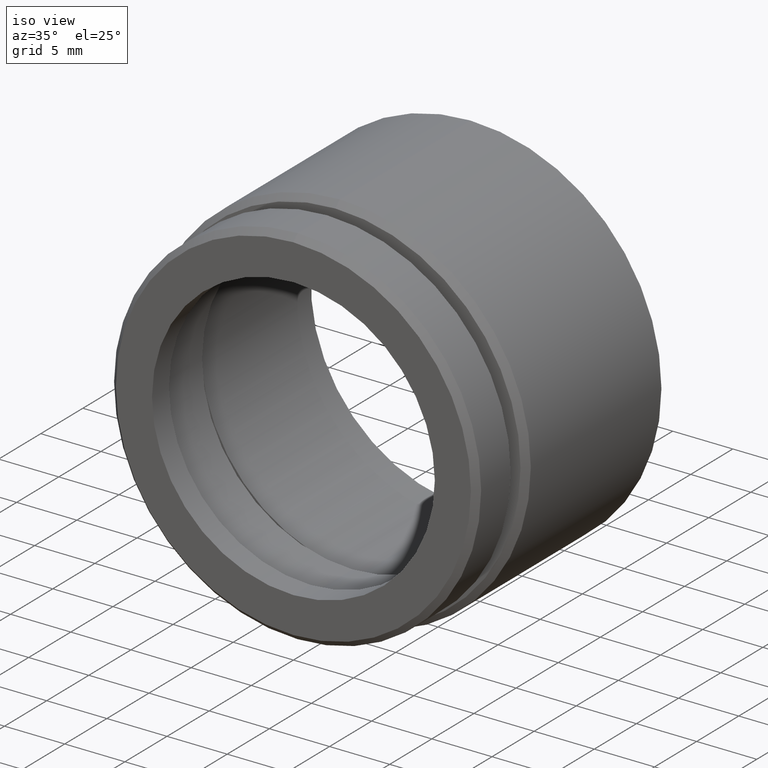
[diagram: clean part render]
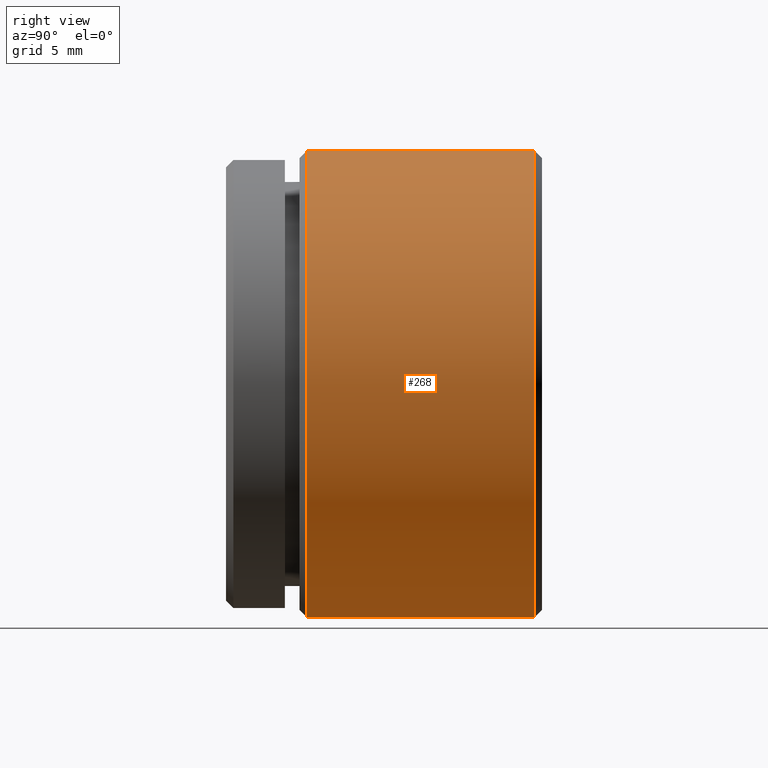
[diagram: tour spotlight — one face highlighted and labeled with its STEP entity id]
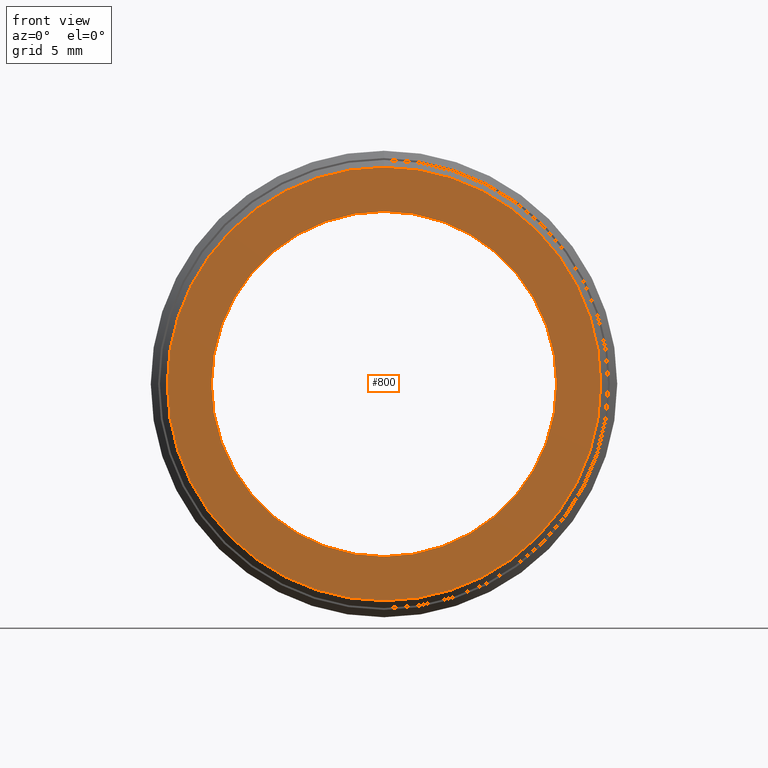
[diagram: tour spotlight — one face highlighted and labeled with its STEP entity id]
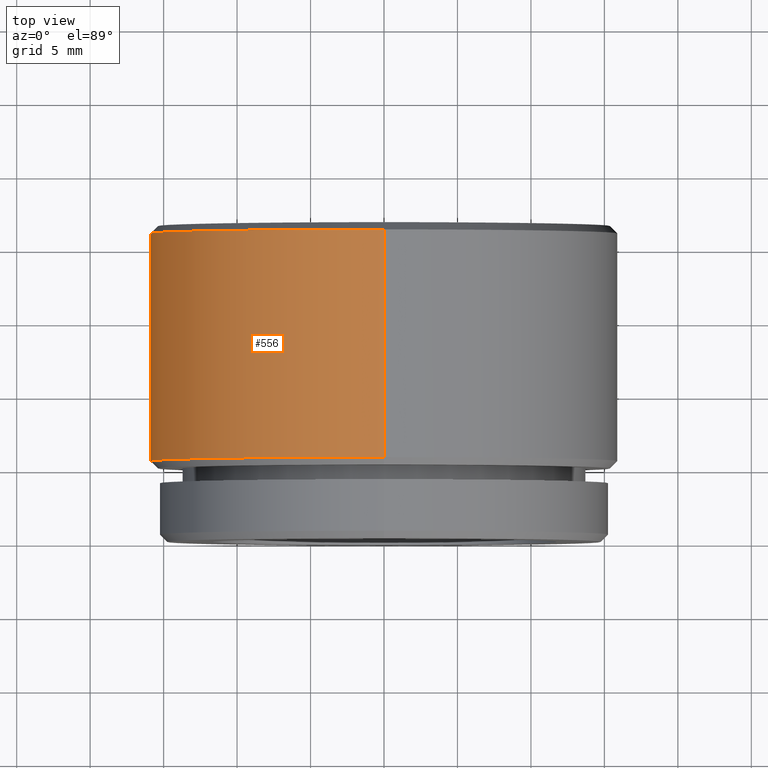
[diagram: tour spotlight — one face highlighted and labeled with its STEP entity id]
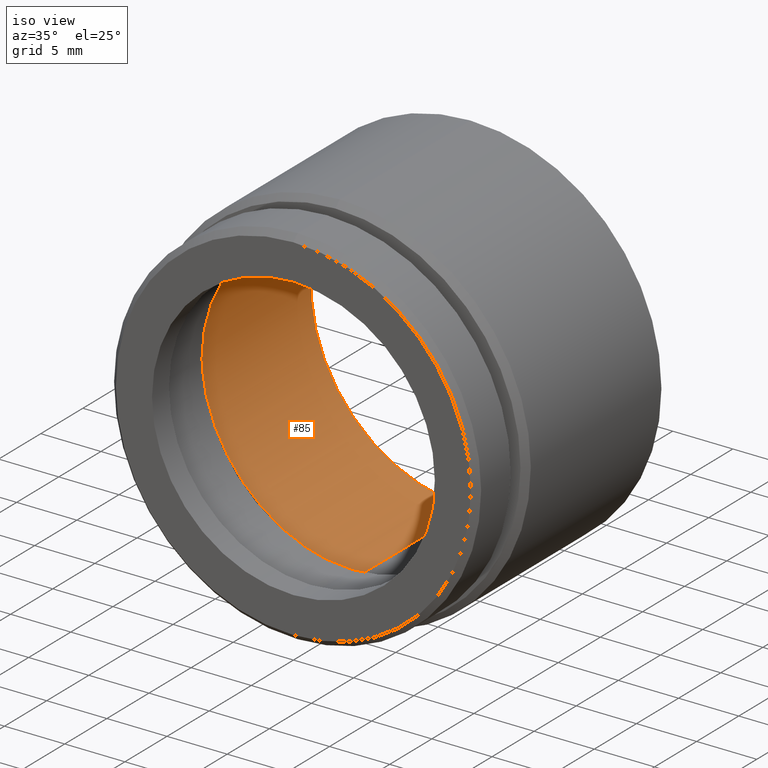
[diagram: tour spotlight — one face highlighted and labeled with its STEP entity id]
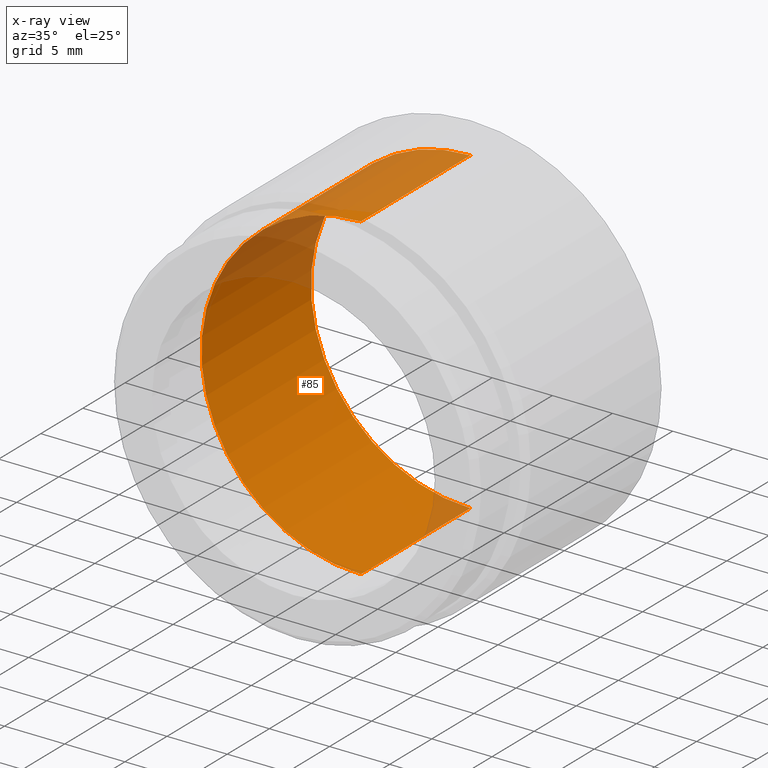
[diagram: x-ray of the same camera — body ghosted, this tour face saturated]
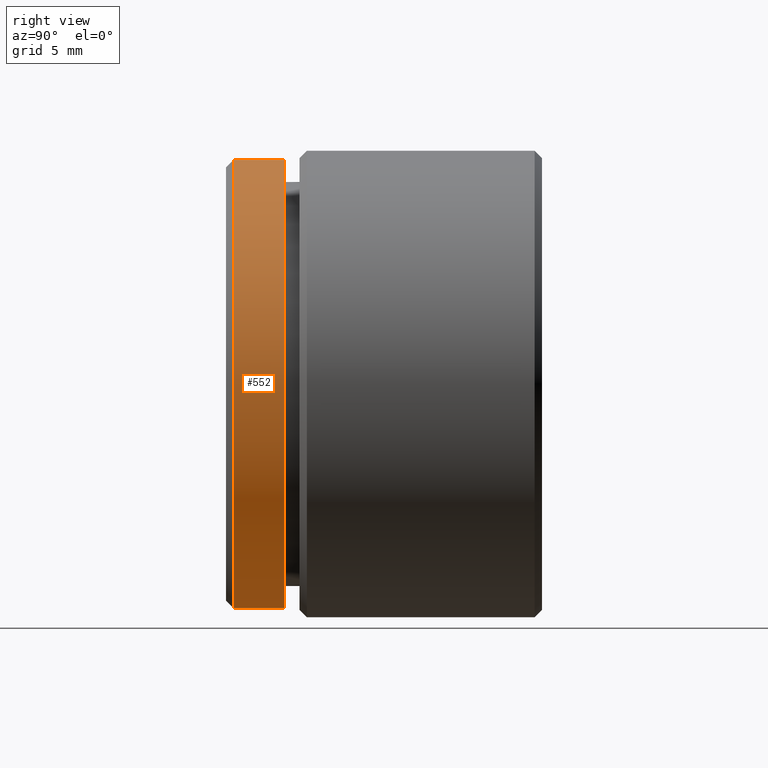
[diagram: tour spotlight — one face highlighted and labeled with its STEP entity id]
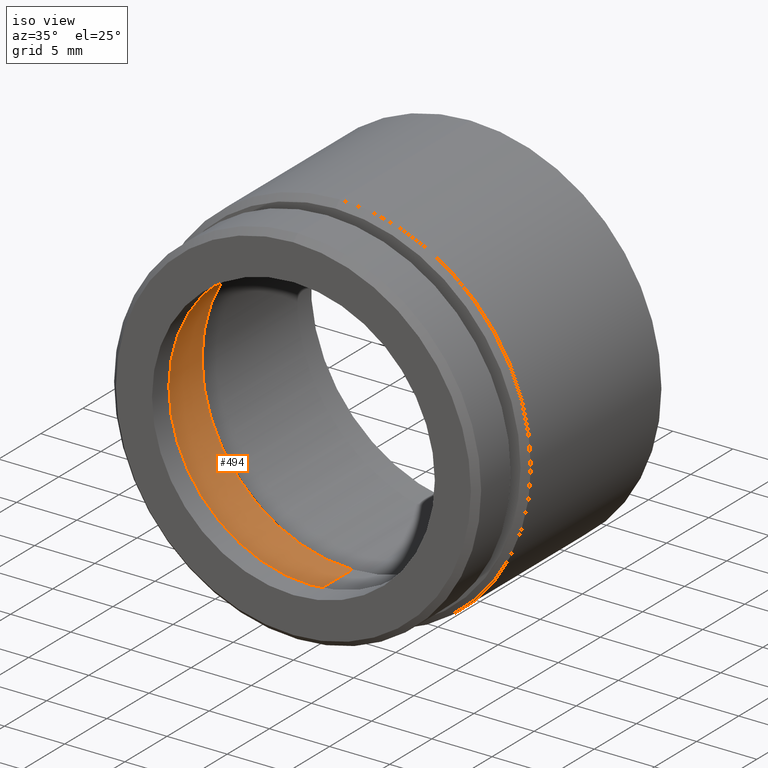
[diagram: tour spotlight — one face highlighted and labeled with its STEP entity id]
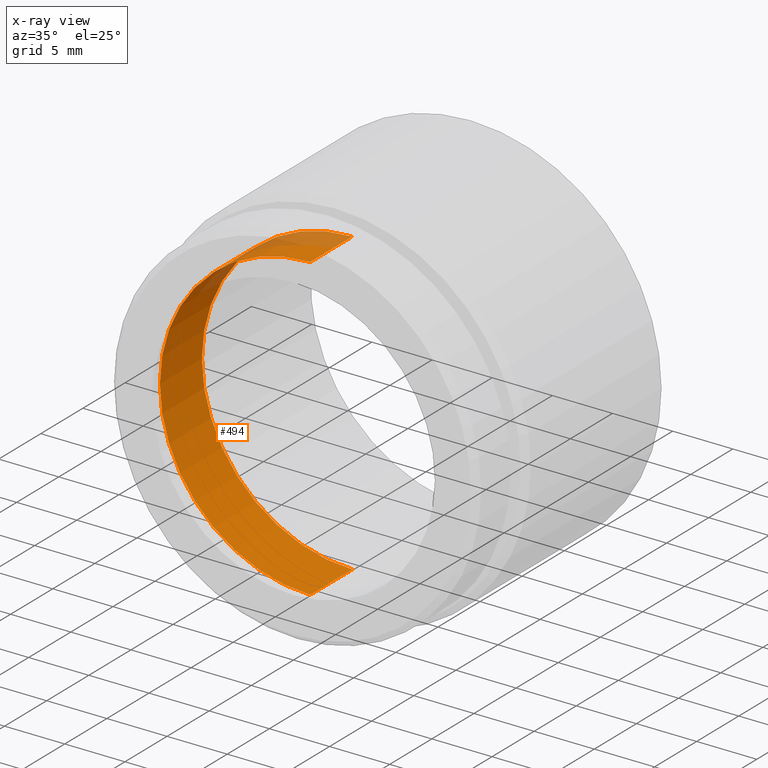
[diagram: x-ray of the same camera — body ghosted, this tour face saturated]
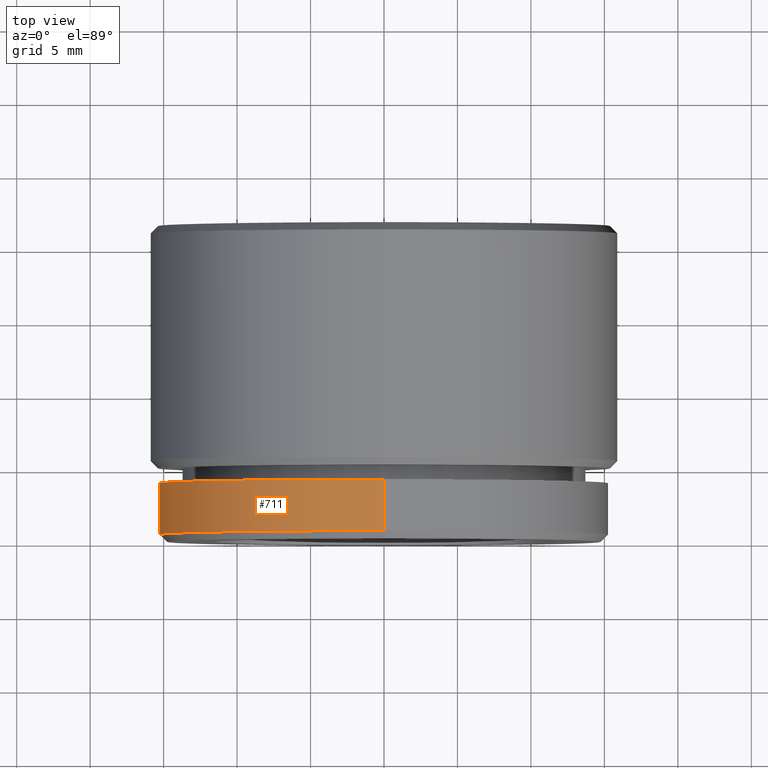
[diagram: tour spotlight — one face highlighted and labeled with its STEP entity id]
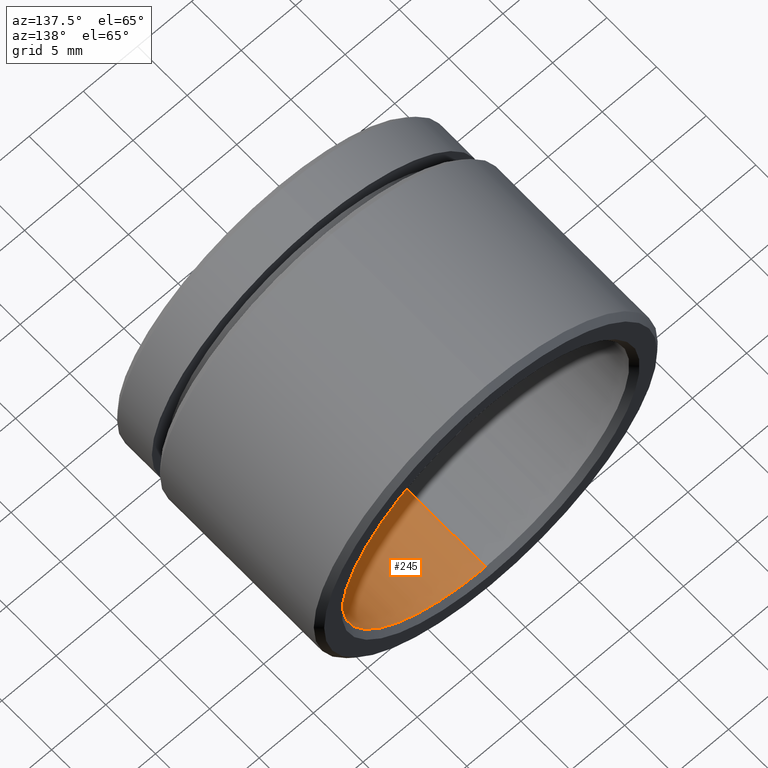
[diagram: tour spotlight — one face highlighted and labeled with its STEP entity id]
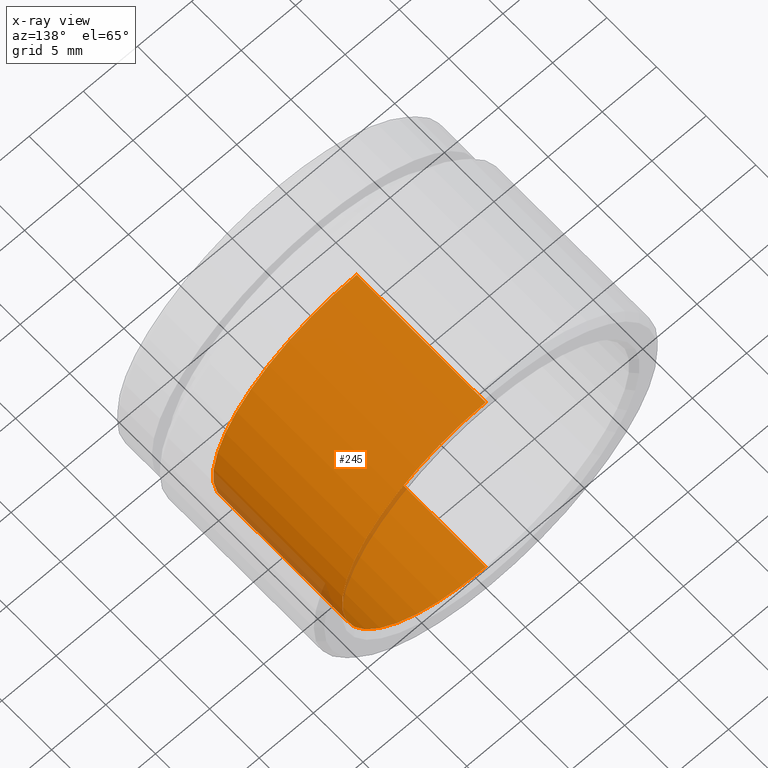
[diagram: x-ray of the same camera — body ghosted, this tour face saturated]
A machine part: a face-by-face anatomy tour. The part has 29 B-rep faces; the first image is the clean iso view, then the 8 largest visible faces are spotlighted one at a time (largest first), each with its STEP entity span.

Face 1 — right view, entity #268. In plain terms, the highlighted cylindrical surface (partial cylindrical patch) has radius 15.875 mm, axis along (-0, -1, -0).
Definition (entity closure, byte-faithful):
#32 = CARTESIAN_POINT ( 'NONE',  ( 0.0000000000000000000, 21.00000000000000000, 0.0000000000000000000 ) ) ;
#34 = CARTESIAN_POINT ( 'NONE',  ( 0.0000000000000000000, 5.500000000000010700, 0.0000000000000000000 ) ) ;
#44 = CYLINDRICAL_SURFACE ( 'NONE', #798, 15.87500000000000000 ) ;
#50 = DIRECTION ( 'NONE',  ( 0.0000000000000000000, 1.000000000000000000, 0.0000000000000000000 ) ) ;
#65 = FACE_OUTER_BOUND ( 'NONE', #105, .T. ) ;
#69 = EDGE_CURVE ( 'NONE', #356, #218, #597, .T. ) ;
#105 = EDGE_LOOP ( 'NONE', ( #115, #612, #541, #323 ) ) ;
#115 = ORIENTED_EDGE ( 'NONE', *, *, #562, .T. ) ;
#172 = AXIS2_PLACEMENT_3D ( 'NONE', #34, #50, #244 ) ;
#218 = VERTEX_POINT ( 'NONE', #421 ) ;
#225 = CARTESIAN_POINT ( 'NONE',  ( 0.0000000000000000000, 21.00000000000000000, -15.87500000000000000 ) ) ;
#243 = VERTEX_POINT ( 'NONE', #804 ) ;
#244 = DIRECTION ( 'NONE',  ( 0.0000000000000000000, 0.0000000000000000000, -1.000000000000000000 ) ) ;
#254 = VECTOR ( 'NONE', #402, 1000.000000000000000 ) ;
#256 = DIRECTION ( 'NONE',  ( 0.0000000000000000000, 0.0000000000000000000, 1.000000000000000000 ) ) ;
#259 = DIRECTION ( 'NONE',  ( -0.0000000000000000000, -1.000000000000000000, -0.0000000000000000000 ) ) ;
#268 = ADVANCED_FACE ( 'NONE', ( #65 ), #44, .T. ) ;
#282 = AXIS2_PLACEMENT_3D ( 'NONE', #32, #259, #256 ) ;
#323 = ORIENTED_EDGE ( 'NONE', *, *, #69, .F. ) ;
#325 = DIRECTION ( 'NONE',  ( -0.0000000000000000000, -1.000000000000000000, -0.0000000000000000000 ) ) ;
#333 = LINE ( 'NONE', #483, #480 ) ;
#356 = VERTEX_POINT ( 'NONE', #225 ) ;
#359 = CARTESIAN_POINT ( 'NONE',  ( 0.0000000000000000000, 0.0000000000000000000, 0.0000000000000000000 ) ) ;
#360 = DIRECTION ( 'NONE',  ( 0.0000000000000000000, 0.0000000000000000000, -1.000000000000000000 ) ) ;
#402 = DIRECTION ( 'NONE',  ( -0.0000000000000000000, -1.000000000000000000, -0.0000000000000000000 ) ) ;
#421 = CARTESIAN_POINT ( 'NONE',  ( 0.0000000000000000000, 5.500000000000010700, -15.87500000000000000 ) ) ;
#480 = VECTOR ( 'NONE', #735, 1000.000000000000000 ) ;
#483 = CARTESIAN_POINT ( 'NONE',  ( 1.944126793646423200E-015, 0.0000000000000000000, 15.87500000000000000 ) ) ;
#525 = CIRCLE ( 'NONE', #282, 15.87500000000000000 ) ;
#541 = ORIENTED_EDGE ( 'NONE', *, *, #652, .T. ) ;
#562 = EDGE_CURVE ( 'NONE', #356, #243, #525, .T. ) ;
#597 = LINE ( 'NONE', #731, #254 ) ;
#598 = CIRCLE ( 'NONE', #172, 15.87500000000000000 ) ;
#612 = ORIENTED_EDGE ( 'NONE', *, *, #724, .T. ) ;
#635 = VERTEX_POINT ( 'NONE', #866 ) ;
#652 = EDGE_CURVE ( 'NONE', #635, #218, #598, .T. ) ;
#724 = EDGE_CURVE ( 'NONE', #243, #635, #333, .T. ) ;
#731 = CARTESIAN_POINT ( 'NONE',  ( 0.0000000000000000000, 0.0000000000000000000, -15.87500000000000000 ) ) ;
#735 = DIRECTION ( 'NONE',  ( -0.0000000000000000000, -1.000000000000000000, -0.0000000000000000000 ) ) ;
#798 = AXIS2_PLACEMENT_3D ( 'NONE', #359, #325, #360 ) ;
#804 = CARTESIAN_POINT ( 'NONE',  ( 1.944126793646423200E-015, 21.00000000000000000, 15.87500000000000000 ) ) ;
#866 = CARTESIAN_POINT ( 'NONE',  ( 1.944126793646423200E-015, 5.500000000000010700, 15.87500000000000000 ) ) ;

Face 2 — front view, entity #800. In plain terms, the highlighted planar face has unit normal (0, -1, -0).
Definition (entity closure, byte-faithful):
#2 = CIRCLE ( 'NONE', #351, 14.74999999999999300 ) ;
#59 = DIRECTION ( 'NONE',  ( -0.0000000000000000000, -1.000000000000000000, -0.0000000000000000000 ) ) ;
#63 = CARTESIAN_POINT ( 'NONE',  ( 1.438959988998140200E-015, 0.0000000000000000000, 11.75000000000000000 ) ) ;
#78 = CIRCLE ( 'NONE', #102, 11.75000000000000000 ) ;
#102 = AXIS2_PLACEMENT_3D ( 'NONE', #370, #379, #506 ) ;
#128 = AXIS2_PLACEMENT_3D ( 'NONE', #543, #59, #584 ) ;
#134 = VERTEX_POINT ( 'NONE', #63 ) ;
#154 = VERTEX_POINT ( 'NONE', #271 ) ;
#155 = AXIS2_PLACEMENT_3D ( 'NONE', #183, #181, #184 ) ;
#162 = DIRECTION ( 'NONE',  ( 0.0000000000000000000, 0.0000000000000000000, -1.000000000000000000 ) ) ;
#166 = ORIENTED_EDGE ( 'NONE', *, *, #554, .T. ) ;
#181 = DIRECTION ( 'NONE',  ( -0.0000000000000000000, -1.000000000000000000, -0.0000000000000000000 ) ) ;
#183 = CARTESIAN_POINT ( 'NONE',  ( 0.0000000000000000000, 0.0000000000000000000, 0.0000000000000000000 ) ) ;
#184 = DIRECTION ( 'NONE',  ( 0.0000000000000000000, 0.0000000000000000000, -1.000000000000000000 ) ) ;
#221 = DIRECTION ( 'NONE',  ( 0.0000000000000000000, 0.0000000000000000000, -1.000000000000000000 ) ) ;
#242 = EDGE_LOOP ( 'NONE', ( #166, #358 ) ) ;
#263 = VERTEX_POINT ( 'NONE', #361 ) ;
#271 = CARTESIAN_POINT ( 'NONE',  ( 0.0000000000000000000, 0.0000000000000000000, -11.75000000000000000 ) ) ;
#274 = CIRCLE ( 'NONE', #128, 11.75000000000000000 ) ;
#291 = DIRECTION ( 'NONE',  ( -0.0000000000000000000, -1.000000000000000000, -0.0000000000000000000 ) ) ;
#351 = AXIS2_PLACEMENT_3D ( 'NONE', #856, #291, #221 ) ;
#358 = ORIENTED_EDGE ( 'NONE', *, *, #641, .T. ) ;
#361 = CARTESIAN_POINT ( 'NONE',  ( 0.0000000000000000000, 0.0000000000000000000, 14.74999999999999300 ) ) ;
#370 = CARTESIAN_POINT ( 'NONE',  ( 0.0000000000000000000, 0.0000000000000000000, 0.0000000000000000000 ) ) ;
#379 = DIRECTION ( 'NONE',  ( -0.0000000000000000000, -1.000000000000000000, -0.0000000000000000000 ) ) ;
#408 = ORIENTED_EDGE ( 'NONE', *, *, #682, .F. ) ;
#446 = FACE_OUTER_BOUND ( 'NONE', #242, .T. ) ;
#506 = DIRECTION ( 'NONE',  ( 0.0000000000000000000, 0.0000000000000000000, -1.000000000000000000 ) ) ;
#543 = CARTESIAN_POINT ( 'NONE',  ( 0.0000000000000000000, 0.0000000000000000000, 0.0000000000000000000 ) ) ;
#554 = EDGE_CURVE ( 'NONE', #263, #668, #2, .T. ) ;
#584 = DIRECTION ( 'NONE',  ( 0.0000000000000000000, 0.0000000000000000000, -1.000000000000000000 ) ) ;
#620 = CARTESIAN_POINT ( 'NONE',  ( 11.75000000000000000, 0.0000000000000000000, 0.0000000000000000000 ) ) ;
#622 = CIRCLE ( 'NONE', #155, 14.74999999999999300 ) ;
#641 = EDGE_CURVE ( 'NONE', #668, #263, #622, .T. ) ;
#664 = CARTESIAN_POINT ( 'NONE',  ( 1.836970198721029600E-015, 0.0000000000000000000, -14.74999999999999300 ) ) ;
#668 = VERTEX_POINT ( 'NONE', #664 ) ;
#676 = EDGE_CURVE ( 'NONE', #154, #134, #78, .T. ) ;
#682 = EDGE_CURVE ( 'NONE', #134, #154, #274, .T. ) ;
#716 = EDGE_LOOP ( 'NONE', ( #759, #408 ) ) ;
#759 = ORIENTED_EDGE ( 'NONE', *, *, #676, .F. ) ;
#760 = PLANE ( 'NONE',  #803 ) ;
#800 = ADVANCED_FACE ( 'NONE', ( #446, #806 ), #760, .T. ) ;
#803 = AXIS2_PLACEMENT_3D ( 'NONE', #620, #841, #162 ) ;
#806 = FACE_BOUND ( 'NONE', #716, .T. ) ;
#841 = DIRECTION ( 'NONE',  ( 0.0000000000000000000, -1.000000000000000000, -0.0000000000000000000 ) ) ;
#856 = CARTESIAN_POINT ( 'NONE',  ( 0.0000000000000000000, 0.0000000000000000000, 0.0000000000000000000 ) ) ;

Face 3 — top view, entity #556. In plain terms, the highlighted cylindrical surface (partial cylindrical patch) has radius 15.875 mm, axis along (-0, -1, -0).
Definition (entity closure, byte-faithful):
#22 = ORIENTED_EDGE ( 'NONE', *, *, #536, .T. ) ;
#38 = ORIENTED_EDGE ( 'NONE', *, *, #69, .T. ) ;
#69 = EDGE_CURVE ( 'NONE', #356, #218, #597, .T. ) ;
#138 = CARTESIAN_POINT ( 'NONE',  ( 0.0000000000000000000, 0.0000000000000000000, 0.0000000000000000000 ) ) ;
#153 = CYLINDRICAL_SURFACE ( 'NONE', #236, 15.87500000000000000 ) ;
#192 = EDGE_LOOP ( 'NONE', ( #719, #22, #38, #853 ) ) ;
#211 = DIRECTION ( 'NONE',  ( 0.0000000000000000000, 0.0000000000000000000, -1.000000000000000000 ) ) ;
#218 = VERTEX_POINT ( 'NONE', #421 ) ;
#225 = CARTESIAN_POINT ( 'NONE',  ( 0.0000000000000000000, 21.00000000000000000, -15.87500000000000000 ) ) ;
#236 = AXIS2_PLACEMENT_3D ( 'NONE', #138, #414, #211 ) ;
#243 = VERTEX_POINT ( 'NONE', #804 ) ;
#254 = VECTOR ( 'NONE', #402, 1000.000000000000000 ) ;
#333 = LINE ( 'NONE', #483, #480 ) ;
#356 = VERTEX_POINT ( 'NONE', #225 ) ;
#367 = FACE_OUTER_BOUND ( 'NONE', #192, .T. ) ;
#392 = AXIS2_PLACEMENT_3D ( 'NONE', #553, #701, #697 ) ;
#402 = DIRECTION ( 'NONE',  ( -0.0000000000000000000, -1.000000000000000000, -0.0000000000000000000 ) ) ;
#414 = DIRECTION ( 'NONE',  ( -0.0000000000000000000, -1.000000000000000000, -0.0000000000000000000 ) ) ;
#421 = CARTESIAN_POINT ( 'NONE',  ( 0.0000000000000000000, 5.500000000000010700, -15.87500000000000000 ) ) ;
#473 = AXIS2_PLACEMENT_3D ( 'NONE', #661, #663, #667 ) ;
#480 = VECTOR ( 'NONE', #735, 1000.000000000000000 ) ;
#483 = CARTESIAN_POINT ( 'NONE',  ( 1.944126793646423200E-015, 0.0000000000000000000, 15.87500000000000000 ) ) ;
#519 = EDGE_CURVE ( 'NONE', #218, #635, #619, .T. ) ;
#536 = EDGE_CURVE ( 'NONE', #243, #356, #769, .T. ) ;
#553 = CARTESIAN_POINT ( 'NONE',  ( 0.0000000000000000000, 21.00000000000000000, 0.0000000000000000000 ) ) ;
#556 = ADVANCED_FACE ( 'NONE', ( #367 ), #153, .T. ) ;
#597 = LINE ( 'NONE', #731, #254 ) ;
#619 = CIRCLE ( 'NONE', #473, 15.87500000000000000 ) ;
#635 = VERTEX_POINT ( 'NONE', #866 ) ;
#661 = CARTESIAN_POINT ( 'NONE',  ( 0.0000000000000000000, 5.500000000000010700, 0.0000000000000000000 ) ) ;
#663 = DIRECTION ( 'NONE',  ( 0.0000000000000000000, 1.000000000000000000, 0.0000000000000000000 ) ) ;
#667 = DIRECTION ( 'NONE',  ( 0.0000000000000000000, 0.0000000000000000000, -1.000000000000000000 ) ) ;
#697 = DIRECTION ( 'NONE',  ( 0.0000000000000000000, 0.0000000000000000000, 1.000000000000000000 ) ) ;
#701 = DIRECTION ( 'NONE',  ( -0.0000000000000000000, -1.000000000000000000, -0.0000000000000000000 ) ) ;
#719 = ORIENTED_EDGE ( 'NONE', *, *, #724, .F. ) ;
#724 = EDGE_CURVE ( 'NONE', #243, #635, #333, .T. ) ;
#731 = CARTESIAN_POINT ( 'NONE',  ( 0.0000000000000000000, 0.0000000000000000000, -15.87500000000000000 ) ) ;
#735 = DIRECTION ( 'NONE',  ( -0.0000000000000000000, -1.000000000000000000, -0.0000000000000000000 ) ) ;
#769 = CIRCLE ( 'NONE', #392, 15.87500000000000000 ) ;
#804 = CARTESIAN_POINT ( 'NONE',  ( 1.944126793646423200E-015, 21.00000000000000000, 15.87500000000000000 ) ) ;
#853 = ORIENTED_EDGE ( 'NONE', *, *, #519, .T. ) ;
#866 = CARTESIAN_POINT ( 'NONE',  ( 1.944126793646423200E-015, 5.500000000000010700, 15.87500000000000000 ) ) ;

Face 4 — iso view, entity #85. An x-ray twin of the same camera follows (body ghosted, this face saturated) — the face is partly hidden behind the body. In plain terms, the highlighted cylindrical surface (partial cylindrical patch) has radius 13.25 mm, axis along (-0, -1, -0).
Definition (entity closure, byte-faithful):
#25 = ORIENTED_EDGE ( 'NONE', *, *, #694, .T. ) ;
#67 = EDGE_LOOP ( 'NONE', ( #79, #448, #25, #603 ) ) ;
#79 = ORIENTED_EDGE ( 'NONE', *, *, #712, .T. ) ;
#84 = VERTEX_POINT ( 'NONE', #328 ) ;
#85 = ADVANCED_FACE ( 'NONE', ( #93 ), #703, .F. ) ;
#88 = VERTEX_POINT ( 'NONE', #269 ) ;
#93 = FACE_OUTER_BOUND ( 'NONE', #67, .T. ) ;
#98 = AXIS2_PLACEMENT_3D ( 'NONE', #472, #442, #710 ) ;
#133 = LINE ( 'NONE', #237, #851 ) ;
#159 = AXIS2_PLACEMENT_3D ( 'NONE', #234, #810, #671 ) ;
#179 = VERTEX_POINT ( 'NONE', #450 ) ;
#226 = CIRCLE ( 'NONE', #98, 13.25000000000000200 ) ;
#234 = CARTESIAN_POINT ( 'NONE',  ( 0.0000000000000000000, 0.0000000000000000000, 0.0000000000000000000 ) ) ;
#237 = CARTESIAN_POINT ( 'NONE',  ( 0.0000000000000000000, 0.0000000000000000000, -13.25000000000000200 ) ) ;
#269 = CARTESIAN_POINT ( 'NONE',  ( 1.622657008870243300E-015, 7.999999999999998200, 13.25000000000000200 ) ) ;
#328 = CARTESIAN_POINT ( 'NONE',  ( 0.0000000000000000000, 21.00000000000000400, -13.25000000000000200 ) ) ;
#442 = DIRECTION ( 'NONE',  ( -0.0000000000000000000, -1.000000000000000000, -0.0000000000000000000 ) ) ;
#448 = ORIENTED_EDGE ( 'NONE', *, *, #660, .T. ) ;
#450 = CARTESIAN_POINT ( 'NONE',  ( 1.622657008870243300E-015, 21.00000000000000400, 13.25000000000000200 ) ) ;
#472 = CARTESIAN_POINT ( 'NONE',  ( 0.0000000000000000000, 7.999999999999998200, 0.0000000000000000000 ) ) ;
#567 = DIRECTION ( 'NONE',  ( -0.0000000000000000000, 1.000000000000000000, -0.0000000000000000000 ) ) ;
#603 = ORIENTED_EDGE ( 'NONE', *, *, #605, .F. ) ;
#605 = EDGE_CURVE ( 'NONE', #84, #657, #133, .T. ) ;
#609 = CARTESIAN_POINT ( 'NONE',  ( 0.0000000000000000000, 21.00000000000000400, 0.0000000000000000000 ) ) ;
#618 = DIRECTION ( 'NONE',  ( -0.0000000000000000000, -1.000000000000000000, -0.0000000000000000000 ) ) ;
#657 = VERTEX_POINT ( 'NONE', #691 ) ;
#660 = EDGE_CURVE ( 'NONE', #179, #88, #795, .T. ) ;
#671 = DIRECTION ( 'NONE',  ( 0.0000000000000000000, 0.0000000000000000000, -1.000000000000000000 ) ) ;
#691 = CARTESIAN_POINT ( 'NONE',  ( 0.0000000000000000000, 7.999999999999998200, -13.25000000000000200 ) ) ;
#694 = EDGE_CURVE ( 'NONE', #88, #657, #226, .T. ) ;
#703 = CYLINDRICAL_SURFACE ( 'NONE', #159, 13.25000000000000200 ) ;
#710 = DIRECTION ( 'NONE',  ( 0.0000000000000000000, 0.0000000000000000000, -1.000000000000000000 ) ) ;
#712 = EDGE_CURVE ( 'NONE', #84, #179, #843, .T. ) ;
#752 = DIRECTION ( 'NONE',  ( -0.0000000000000000000, -1.000000000000000000, -0.0000000000000000000 ) ) ;
#771 = VECTOR ( 'NONE', #618, 1000.000000000000000 ) ;
#779 = AXIS2_PLACEMENT_3D ( 'NONE', #609, #567, #862 ) ;
#795 = LINE ( 'NONE', #846, #771 ) ;
#810 = DIRECTION ( 'NONE',  ( -0.0000000000000000000, -1.000000000000000000, -0.0000000000000000000 ) ) ;
#843 = CIRCLE ( 'NONE', #779, 13.25000000000000200 ) ;
#846 = CARTESIAN_POINT ( 'NONE',  ( 1.622657008870243300E-015, 0.0000000000000000000, 13.25000000000000200 ) ) ;
#851 = VECTOR ( 'NONE', #752, 1000.000000000000000 ) ;
#862 = DIRECTION ( 'NONE',  ( 0.0000000000000000000, 0.0000000000000000000, 1.000000000000000000 ) ) ;

Face 5 — right view, entity #552. In plain terms, the highlighted cylindrical surface (partial cylindrical patch) has radius 15.25 mm, axis along (-0, -1, -0).
Definition (entity closure, byte-faithful):
#5 = VERTEX_POINT ( 'NONE', #37 ) ;
#7 = EDGE_CURVE ( 'NONE', #400, #5, #335, .T. ) ;
#17 = DIRECTION ( 'NONE',  ( 0.0000000000000000000, 0.0000000000000000000, -1.000000000000000000 ) ) ;
#29 = DIRECTION ( 'NONE',  ( 0.0000000000000000000, 1.000000000000000000, 0.0000000000000000000 ) ) ;
#37 = CARTESIAN_POINT ( 'NONE',  ( 0.0000000000000000000, 0.5000000000000057700, -15.25000000000000000 ) ) ;
#41 = CARTESIAN_POINT ( 'NONE',  ( 0.0000000000000000000, 0.5000000000000057700, 0.0000000000000000000 ) ) ;
#58 = ORIENTED_EDGE ( 'NONE', *, *, #839, .T. ) ;
#95 = ORIENTED_EDGE ( 'NONE', *, *, #824, .F. ) ;
#114 = CARTESIAN_POINT ( 'NONE',  ( 1.867586368699713800E-015, 0.5000000000000057700, 15.25000000000000000 ) ) ;
#146 = VERTEX_POINT ( 'NONE', #260 ) ;
#247 = DIRECTION ( 'NONE',  ( -0.0000000000000000000, -1.000000000000000000, -0.0000000000000000000 ) ) ;
#258 = ORIENTED_EDGE ( 'NONE', *, *, #7, .T. ) ;
#260 = CARTESIAN_POINT ( 'NONE',  ( 1.867586368699713800E-015, 4.000000000000000900, 15.25000000000000000 ) ) ;
#278 = AXIS2_PLACEMENT_3D ( 'NONE', #722, #674, #302 ) ;
#301 = EDGE_CURVE ( 'NONE', #430, #146, #757, .T. ) ;
#302 = DIRECTION ( 'NONE',  ( 0.0000000000000000000, 0.0000000000000000000, -1.000000000000000000 ) ) ;
#335 = CIRCLE ( 'NONE', #482, 15.25000000000000000 ) ;
#344 = VECTOR ( 'NONE', #381, 1000.000000000000000 ) ;
#381 = DIRECTION ( 'NONE',  ( -0.0000000000000000000, -1.000000000000000000, -0.0000000000000000000 ) ) ;
#383 = DIRECTION ( 'NONE',  ( -0.0000000000000000000, -1.000000000000000000, -0.0000000000000000000 ) ) ;
#385 = CARTESIAN_POINT ( 'NONE',  ( 0.0000000000000000000, 4.000000000000000900, 0.0000000000000000000 ) ) ;
#400 = VERTEX_POINT ( 'NONE', #114 ) ;
#430 = VERTEX_POINT ( 'NONE', #755 ) ;
#433 = FACE_OUTER_BOUND ( 'NONE', #636, .T. ) ;
#437 = CARTESIAN_POINT ( 'NONE',  ( 1.867586368699713800E-015, 0.0000000000000000000, 15.25000000000000000 ) ) ;
#482 = AXIS2_PLACEMENT_3D ( 'NONE', #41, #29, #17 ) ;
#492 = CARTESIAN_POINT ( 'NONE',  ( 0.0000000000000000000, 0.0000000000000000000, -15.25000000000000000 ) ) ;
#552 = ADVANCED_FACE ( 'NONE', ( #433 ), #692, .T. ) ;
#557 = DIRECTION ( 'NONE',  ( 0.0000000000000000000, 0.0000000000000000000, -1.000000000000000000 ) ) ;
#587 = LINE ( 'NONE', #492, #689 ) ;
#636 = EDGE_LOOP ( 'NONE', ( #751, #58, #258, #95 ) ) ;
#674 = DIRECTION ( 'NONE',  ( -0.0000000000000000000, -1.000000000000000000, -0.0000000000000000000 ) ) ;
#689 = VECTOR ( 'NONE', #247, 1000.000000000000000 ) ;
#692 = CYLINDRICAL_SURFACE ( 'NONE', #278, 15.25000000000000000 ) ;
#722 = CARTESIAN_POINT ( 'NONE',  ( 0.0000000000000000000, 0.0000000000000000000, 0.0000000000000000000 ) ) ;
#751 = ORIENTED_EDGE ( 'NONE', *, *, #301, .T. ) ;
#755 = CARTESIAN_POINT ( 'NONE',  ( 0.0000000000000000000, 4.000000000000000900, -15.25000000000000000 ) ) ;
#757 = CIRCLE ( 'NONE', #813, 15.25000000000000000 ) ;
#813 = AXIS2_PLACEMENT_3D ( 'NONE', #385, #383, #557 ) ;
#824 = EDGE_CURVE ( 'NONE', #430, #5, #587, .T. ) ;
#839 = EDGE_CURVE ( 'NONE', #146, #400, #874, .T. ) ;
#874 = LINE ( 'NONE', #437, #344 ) ;

Face 6 — iso view, entity #494. An x-ray twin of the same camera follows (body ghosted, this face saturated) — the face is partly hidden behind the body. In plain terms, the highlighted cylindrical surface (partial cylindrical patch) has radius 12.5 mm, axis along (-0, -1, -0).
Definition (entity closure, byte-faithful):
#14 = LINE ( 'NONE', #630, #513 ) ;
#18 = CARTESIAN_POINT ( 'NONE',  ( 1.530808498934191500E-015, 0.0000000000000000000, 12.50000000000000000 ) ) ;
#86 = EDGE_LOOP ( 'NONE', ( #819, #300, #459, #104 ) ) ;
#90 = EDGE_CURVE ( 'NONE', #504, #672, #14, .T. ) ;
#101 = CARTESIAN_POINT ( 'NONE',  ( 0.0000000000000000000, 7.000000000000000900, -12.50000000000000200 ) ) ;
#104 = ORIENTED_EDGE ( 'NONE', *, *, #90, .F. ) ;
#121 = CARTESIAN_POINT ( 'NONE',  ( 1.530808498934191500E-015, 2.000000000000000400, 12.50000000000000000 ) ) ;
#160 = AXIS2_PLACEMENT_3D ( 'NONE', #296, #413, #465 ) ;
#272 = CYLINDRICAL_SURFACE ( 'NONE', #523, 12.50000000000000000 ) ;
#296 = CARTESIAN_POINT ( 'NONE',  ( 0.0000000000000000000, 7.000000000000000900, 0.0000000000000000000 ) ) ;
#300 = ORIENTED_EDGE ( 'NONE', *, *, #802, .T. ) ;
#312 = CARTESIAN_POINT ( 'NONE',  ( 0.0000000000000000000, 0.0000000000000000000, 0.0000000000000000000 ) ) ;
#330 = DIRECTION ( 'NONE',  ( -0.0000000000000000000, -1.000000000000000000, -0.0000000000000000000 ) ) ;
#395 = DIRECTION ( 'NONE',  ( -0.0000000000000000000, -1.000000000000000000, -0.0000000000000000000 ) ) ;
#413 = DIRECTION ( 'NONE',  ( -0.0000000000000000000, -1.000000000000000000, -0.0000000000000000000 ) ) ;
#432 = AXIS2_PLACEMENT_3D ( 'NONE', #742, #753, #756 ) ;
#459 = ORIENTED_EDGE ( 'NONE', *, *, #548, .T. ) ;
#462 = VERTEX_POINT ( 'NONE', #121 ) ;
#465 = DIRECTION ( 'NONE',  ( 0.0000000000000000000, 0.0000000000000000000, -1.000000000000000000 ) ) ;
#494 = ADVANCED_FACE ( 'NONE', ( #815 ), #272, .F. ) ;
#503 = CIRCLE ( 'NONE', #160, 12.50000000000000200 ) ;
#504 = VERTEX_POINT ( 'NONE', #101 ) ;
#513 = VECTOR ( 'NONE', #395, 1000.000000000000000 ) ;
#523 = AXIS2_PLACEMENT_3D ( 'NONE', #312, #330, #805 ) ;
#548 = EDGE_CURVE ( 'NONE', #462, #672, #573, .T. ) ;
#573 = CIRCLE ( 'NONE', #432, 12.50000000000000000 ) ;
#582 = CARTESIAN_POINT ( 'NONE',  ( 0.0000000000000000000, 2.000000000000000400, -12.50000000000000000 ) ) ;
#607 = LINE ( 'NONE', #18, #715 ) ;
#630 = CARTESIAN_POINT ( 'NONE',  ( 0.0000000000000000000, 0.0000000000000000000, -12.50000000000000000 ) ) ;
#672 = VERTEX_POINT ( 'NONE', #582 ) ;
#704 = DIRECTION ( 'NONE',  ( -0.0000000000000000000, -1.000000000000000000, -0.0000000000000000000 ) ) ;
#715 = VECTOR ( 'NONE', #704, 1000.000000000000000 ) ;
#727 = VERTEX_POINT ( 'NONE', #872 ) ;
#742 = CARTESIAN_POINT ( 'NONE',  ( 0.0000000000000000000, 2.000000000000000400, 0.0000000000000000000 ) ) ;
#753 = DIRECTION ( 'NONE',  ( -0.0000000000000000000, -1.000000000000000000, -0.0000000000000000000 ) ) ;
#756 = DIRECTION ( 'NONE',  ( 0.0000000000000000000, 0.0000000000000000000, -1.000000000000000000 ) ) ;
#802 = EDGE_CURVE ( 'NONE', #727, #462, #607, .T. ) ;
#805 = DIRECTION ( 'NONE',  ( 0.0000000000000000000, 0.0000000000000000000, -1.000000000000000000 ) ) ;
#815 = FACE_OUTER_BOUND ( 'NONE', #86, .T. ) ;
#819 = ORIENTED_EDGE ( 'NONE', *, *, #854, .F. ) ;
#854 = EDGE_CURVE ( 'NONE', #727, #504, #503, .T. ) ;
#872 = CARTESIAN_POINT ( 'NONE',  ( 1.530808498934191900E-015, 7.000000000000000900, 12.50000000000000400 ) ) ;

Face 7 — top view, entity #711. In plain terms, the highlighted cylindrical surface (partial cylindrical patch) has radius 15.25 mm, axis along (-0, -1, -0).
Definition (entity closure, byte-faithful):
#5 = VERTEX_POINT ( 'NONE', #37 ) ;
#37 = CARTESIAN_POINT ( 'NONE',  ( 0.0000000000000000000, 0.5000000000000057700, -15.25000000000000000 ) ) ;
#80 = DIRECTION ( 'NONE',  ( -0.0000000000000000000, -1.000000000000000000, -0.0000000000000000000 ) ) ;
#83 = CIRCLE ( 'NONE', #713, 15.25000000000000000 ) ;
#103 = CIRCLE ( 'NONE', #191, 15.25000000000000000 ) ;
#114 = CARTESIAN_POINT ( 'NONE',  ( 1.867586368699713800E-015, 0.5000000000000057700, 15.25000000000000000 ) ) ;
#129 = CARTESIAN_POINT ( 'NONE',  ( 0.0000000000000000000, 4.000000000000000900, 0.0000000000000000000 ) ) ;
#146 = VERTEX_POINT ( 'NONE', #260 ) ;
#191 = AXIS2_PLACEMENT_3D ( 'NONE', #500, #493, #826 ) ;
#247 = DIRECTION ( 'NONE',  ( -0.0000000000000000000, -1.000000000000000000, -0.0000000000000000000 ) ) ;
#260 = CARTESIAN_POINT ( 'NONE',  ( 1.867586368699713800E-015, 4.000000000000000900, 15.25000000000000000 ) ) ;
#344 = VECTOR ( 'NONE', #381, 1000.000000000000000 ) ;
#374 = CARTESIAN_POINT ( 'NONE',  ( 0.0000000000000000000, 0.0000000000000000000, 0.0000000000000000000 ) ) ;
#381 = DIRECTION ( 'NONE',  ( -0.0000000000000000000, -1.000000000000000000, -0.0000000000000000000 ) ) ;
#386 = ORIENTED_EDGE ( 'NONE', *, *, #778, .T. ) ;
#399 = FACE_OUTER_BOUND ( 'NONE', #429, .T. ) ;
#400 = VERTEX_POINT ( 'NONE', #114 ) ;
#429 = EDGE_LOOP ( 'NONE', ( #526, #386, #440, #863 ) ) ;
#430 = VERTEX_POINT ( 'NONE', #755 ) ;
#437 = CARTESIAN_POINT ( 'NONE',  ( 1.867586368699713800E-015, 0.0000000000000000000, 15.25000000000000000 ) ) ;
#440 = ORIENTED_EDGE ( 'NONE', *, *, #824, .T. ) ;
#492 = CARTESIAN_POINT ( 'NONE',  ( 0.0000000000000000000, 0.0000000000000000000, -15.25000000000000000 ) ) ;
#493 = DIRECTION ( 'NONE',  ( 0.0000000000000000000, 1.000000000000000000, 0.0000000000000000000 ) ) ;
#500 = CARTESIAN_POINT ( 'NONE',  ( 0.0000000000000000000, 0.5000000000000057700, 0.0000000000000000000 ) ) ;
#526 = ORIENTED_EDGE ( 'NONE', *, *, #839, .F. ) ;
#529 = DIRECTION ( 'NONE',  ( 0.0000000000000000000, 0.0000000000000000000, -1.000000000000000000 ) ) ;
#587 = LINE ( 'NONE', #492, #689 ) ;
#656 = CYLINDRICAL_SURFACE ( 'NONE', #750, 15.25000000000000000 ) ;
#686 = DIRECTION ( 'NONE',  ( -0.0000000000000000000, -1.000000000000000000, -0.0000000000000000000 ) ) ;
#689 = VECTOR ( 'NONE', #247, 1000.000000000000000 ) ;
#711 = ADVANCED_FACE ( 'NONE', ( #399 ), #656, .T. ) ;
#713 = AXIS2_PLACEMENT_3D ( 'NONE', #129, #686, #838 ) ;
#750 = AXIS2_PLACEMENT_3D ( 'NONE', #374, #80, #529 ) ;
#755 = CARTESIAN_POINT ( 'NONE',  ( 0.0000000000000000000, 4.000000000000000900, -15.25000000000000000 ) ) ;
#778 = EDGE_CURVE ( 'NONE', #146, #430, #83, .T. ) ;
#811 = EDGE_CURVE ( 'NONE', #5, #400, #103, .T. ) ;
#824 = EDGE_CURVE ( 'NONE', #430, #5, #587, .T. ) ;
#826 = DIRECTION ( 'NONE',  ( 0.0000000000000000000, 0.0000000000000000000, -1.000000000000000000 ) ) ;
#838 = DIRECTION ( 'NONE',  ( 0.0000000000000000000, 0.0000000000000000000, -1.000000000000000000 ) ) ;
#839 = EDGE_CURVE ( 'NONE', #146, #400, #874, .T. ) ;
#863 = ORIENTED_EDGE ( 'NONE', *, *, #811, .T. ) ;
#874 = LINE ( 'NONE', #437, #344 ) ;

Face 8 — auxiliary view, entity #245. An x-ray twin of the same camera follows (body ghosted, this face saturated) — the face is partly hidden behind the body. In plain terms, the highlighted cylindrical surface (partial cylindrical patch) has radius 13.25 mm, axis along (-0, -1, -0).
Definition (entity closure, byte-faithful):
#84 = VERTEX_POINT ( 'NONE', #328 ) ;
#88 = VERTEX_POINT ( 'NONE', #269 ) ;
#119 = CARTESIAN_POINT ( 'NONE',  ( 0.0000000000000000000, 7.999999999999998200, 0.0000000000000000000 ) ) ;
#133 = LINE ( 'NONE', #237, #851 ) ;
#141 = EDGE_CURVE ( 'NONE', #179, #84, #164, .T. ) ;
#143 = FACE_OUTER_BOUND ( 'NONE', #322, .T. ) ;
#164 = CIRCLE ( 'NONE', #310, 13.25000000000000200 ) ;
#179 = VERTEX_POINT ( 'NONE', #450 ) ;
#202 = ORIENTED_EDGE ( 'NONE', *, *, #660, .F. ) ;
#214 = CARTESIAN_POINT ( 'NONE',  ( 0.0000000000000000000, 21.00000000000000400, 0.0000000000000000000 ) ) ;
#215 = CIRCLE ( 'NONE', #685, 13.25000000000000200 ) ;
#228 = ORIENTED_EDGE ( 'NONE', *, *, #605, .T. ) ;
#237 = CARTESIAN_POINT ( 'NONE',  ( 0.0000000000000000000, 0.0000000000000000000, -13.25000000000000200 ) ) ;
#239 = CYLINDRICAL_SURFACE ( 'NONE', #870, 13.25000000000000200 ) ;
#245 = ADVANCED_FACE ( 'NONE', ( #143 ), #239, .F. ) ;
#269 = CARTESIAN_POINT ( 'NONE',  ( 1.622657008870243300E-015, 7.999999999999998200, 13.25000000000000200 ) ) ;
#310 = AXIS2_PLACEMENT_3D ( 'NONE', #214, #830, #602 ) ;
#322 = EDGE_LOOP ( 'NONE', ( #202, #491, #228, #347 ) ) ;
#328 = CARTESIAN_POINT ( 'NONE',  ( 0.0000000000000000000, 21.00000000000000400, -13.25000000000000200 ) ) ;
#347 = ORIENTED_EDGE ( 'NONE', *, *, #354, .T. ) ;
#354 = EDGE_CURVE ( 'NONE', #657, #88, #215, .T. ) ;
#419 = DIRECTION ( 'NONE',  ( 0.0000000000000000000, 0.0000000000000000000, -1.000000000000000000 ) ) ;
#450 = CARTESIAN_POINT ( 'NONE',  ( 1.622657008870243300E-015, 21.00000000000000400, 13.25000000000000200 ) ) ;
#491 = ORIENTED_EDGE ( 'NONE', *, *, #141, .T. ) ;
#527 = DIRECTION ( 'NONE',  ( -0.0000000000000000000, -1.000000000000000000, -0.0000000000000000000 ) ) ;
#544 = DIRECTION ( 'NONE',  ( 0.0000000000000000000, 0.0000000000000000000, -1.000000000000000000 ) ) ;
#588 = CARTESIAN_POINT ( 'NONE',  ( 0.0000000000000000000, 0.0000000000000000000, 0.0000000000000000000 ) ) ;
#602 = DIRECTION ( 'NONE',  ( 0.0000000000000000000, 0.0000000000000000000, 1.000000000000000000 ) ) ;
#605 = EDGE_CURVE ( 'NONE', #84, #657, #133, .T. ) ;
#606 = DIRECTION ( 'NONE',  ( -0.0000000000000000000, -1.000000000000000000, -0.0000000000000000000 ) ) ;
#618 = DIRECTION ( 'NONE',  ( -0.0000000000000000000, -1.000000000000000000, -0.0000000000000000000 ) ) ;
#657 = VERTEX_POINT ( 'NONE', #691 ) ;
#660 = EDGE_CURVE ( 'NONE', #179, #88, #795, .T. ) ;
#685 = AXIS2_PLACEMENT_3D ( 'NONE', #119, #606, #419 ) ;
#691 = CARTESIAN_POINT ( 'NONE',  ( 0.0000000000000000000, 7.999999999999998200, -13.25000000000000200 ) ) ;
#752 = DIRECTION ( 'NONE',  ( -0.0000000000000000000, -1.000000000000000000, -0.0000000000000000000 ) ) ;
#771 = VECTOR ( 'NONE', #618, 1000.000000000000000 ) ;
#795 = LINE ( 'NONE', #846, #771 ) ;
#830 = DIRECTION ( 'NONE',  ( -0.0000000000000000000, 1.000000000000000000, -0.0000000000000000000 ) ) ;
#846 = CARTESIAN_POINT ( 'NONE',  ( 1.622657008870243300E-015, 0.0000000000000000000, 13.25000000000000200 ) ) ;
#851 = VECTOR ( 'NONE', #752, 1000.000000000000000 ) ;
#870 = AXIS2_PLACEMENT_3D ( 'NONE', #588, #527, #544 ) ;